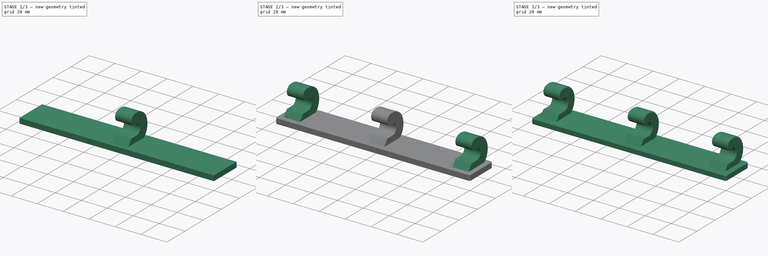
[diagram: build sequence overview — one tinted view per stage of 3, left to right]
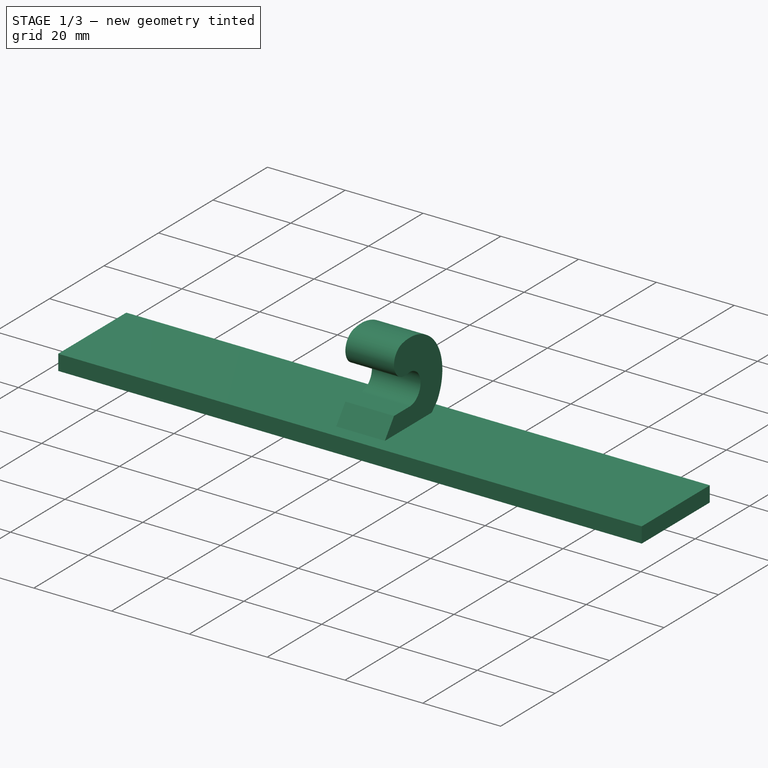
[diagram: stage 1 of 3 — iso view after this stage's code; geometry added in this stage tinted green]
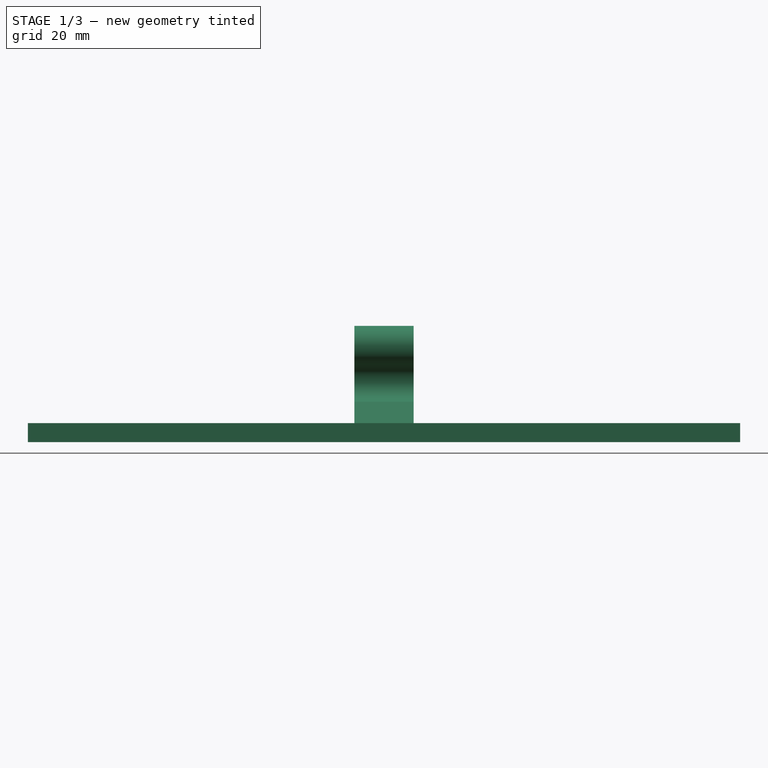
[diagram: stage 1 of 3 — front view after this stage's code; geometry added in this stage tinted green]
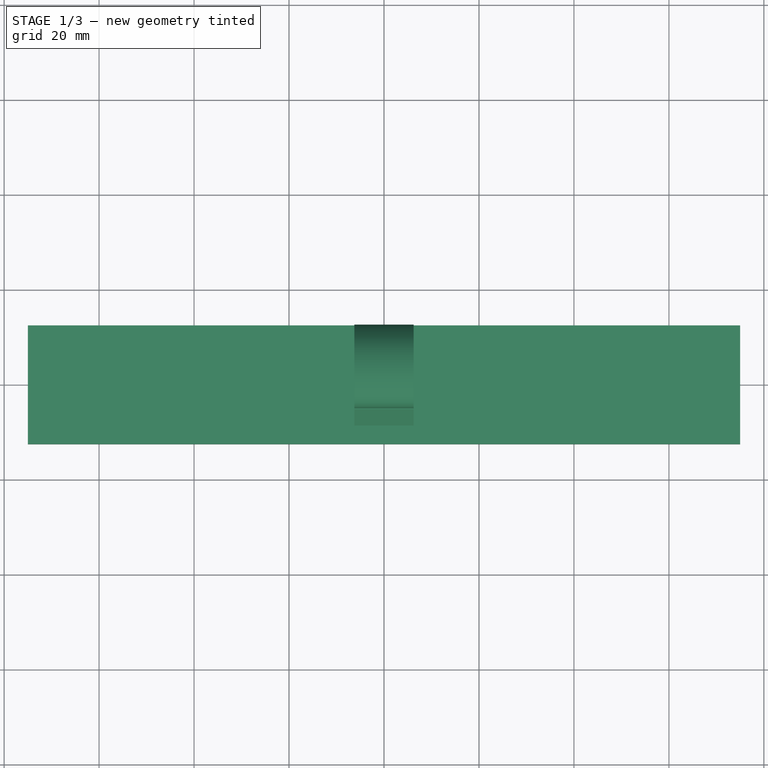
[diagram: stage 1 of 3 — top view after this stage's code; geometry added in this stage tinted green]
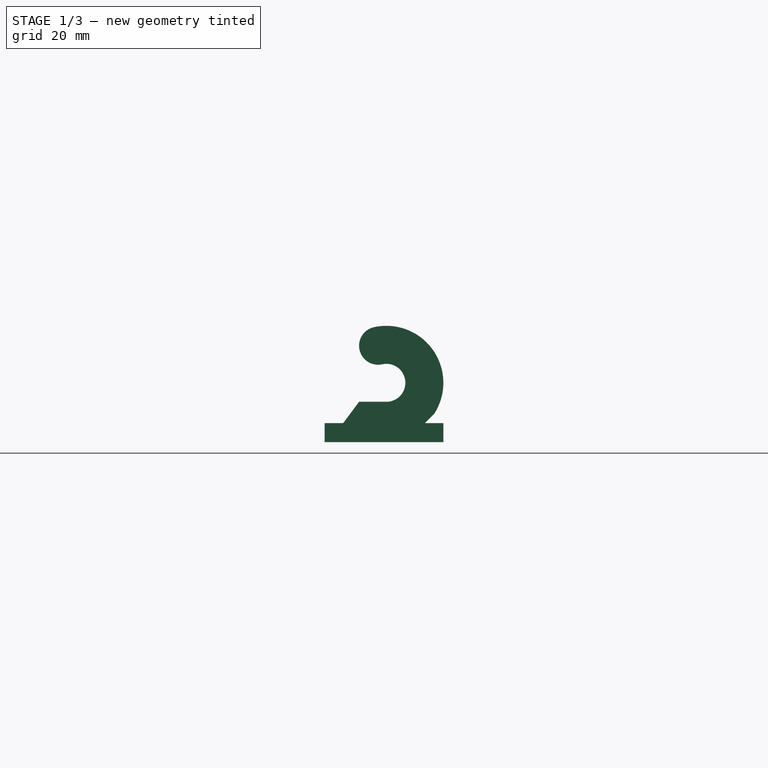
[diagram: stage 1 of 3 — right view after this stage's code; geometry added in this stage tinted green]
FCSTD DOCUMENT  (FreeCAD 0.19R22846 (Git))
Label: waschlappen_haken
License: All rights reserved
LicenseURL: http://en.wikipedia.org/wiki/All_rights_reserved
objects: Sketcher::SketchObject×2, PartDesign::Pad×2, PartDesign::LinearPattern×2, PartDesign::Fillet×2, PartDesign::Chamfer×1, PartDesign::Body×1
note: 15 computed .brp shape members not serialized (recipe doc carries the construction recipe); baked Part::Feature solids carry a one-line shape summary decoded from their .brp

FEATURE [Sketcher::SketchObject] Sketch  label="sk_basis"
  MapMode = 5
  Support = -> [XY_Plane]
  sketch-geometry (4):
    g0: LineSegment StartX=-75 StartY=12.5 StartZ=0 EndX=75 EndY=12.5 EndZ=0
    g1: LineSegment StartX=75 StartY=12.5 StartZ=0 EndX=75 EndY=-12.5 EndZ=0
    g2: LineSegment StartX=75 StartY=-12.5 StartZ=0 EndX=-75 EndY=-12.5 EndZ=0
    g3: LineSegment StartX=-75 StartY=-12.5 StartZ=0 EndX=-75 EndY=12.5 EndZ=0
  constraints (11):
    c: Coincident(g0,g1)
    c: Coincident(g1,g2)
    c: Coincident(g2,g3)
    c: Coincident(g3,g0)
    c: Horizontal(g0)
    c: Horizontal(g2)
    c: Vertical(g1)
    c: Vertical(g3)
    c: DistanceY(g3,g3) = 25
    c: DistanceX(g0,g0) = 150
    c: Symmetric(g0,g1,g-1)
FEATURE [PartDesign::Pad] Pad  label="p_basis"
  Direction = (1,1,1)
  Length = 4
  Length2 = 100
  Profile = -> Sketch
  Refine = true
  Type = 0
FEATURE [Sketcher::SketchObject] Sketch002  label="sk_haken"
  ExternalGeometry = -> [Pad]
  MapMode = 5
  Placement = pos=(0,0,0) rot=(0.57735,0.57735,0.57735;2.0944rad)
  Support = -> [YZ_Plane]
  sketch-geometry (13):
    g0: ArcOfCircle CenterX=0.5 CenterY=12.5 CenterZ=0 NormalX=0 NormalY=0 NormalZ=1 AngleXU=0 Radius=12 StartAngle=5.70552 EndAngle=8.07451
    g1: ArcOfCircle CenterX=-1.25 CenterY=20.3062 CenterZ=0 NormalX=0 NormalY=0 NormalZ=1 AngleXU=0 Radius=4 StartAngle=1.79133 EndAngle=4.93292
    g2: ArcOfCircle CenterX=0.5 CenterY=12.5 CenterZ=0 NormalX=0 NormalY=0 NormalZ=1 AngleXU=0 Radius=4 StartAngle=4.71239 EndAngle=8.07451
    g3: LineSegment StartX=0.5 StartY=8.5 StartZ=0 EndX=-5.25 EndY=8.5 EndZ=0
    g4: LineSegment StartX=-5.25 StartY=8.5 StartZ=0 EndX=-8.60572 EndY=4 EndZ=0
    g5: LineSegment [constr] StartX=12.5 StartY=4 StartZ=0 EndX=12.5 EndY=12.5 EndZ=0
    g6: LineSegment [constr] StartX=-5.25 StartY=4 StartZ=0 EndX=-5.25 EndY=20.3062 EndZ=0
    g7: LineSegment StartX=10.5529 StartY=5.94714 StartZ=0 EndX=8.60572 EndY=4 EndZ=0
    g8: LineSegment [constr] StartX=12.5 StartY=4 StartZ=0 EndX=10.5529 EndY=5.94714 EndZ=0
    g9: LineSegment [constr] StartX=12.5 StartY=12.5 StartZ=0 EndX=4.5 EndY=12.5 EndZ=0
    g10: LineSegment [constr] StartX=-8.60572 StartY=4 StartZ=0 EndX=-12.5 EndY=4 EndZ=0
    g11: LineSegment [constr] StartX=8.60572 StartY=4 StartZ=0 EndX=12.5 EndY=4 EndZ=0
    g12: LineSegment StartX=8.60572 StartY=4 StartZ=0 EndX=-8.60572 EndY=4 EndZ=0
  constraints (37):
    c: Tangent(g0,g1) = -1.5708
    c: Tangent(g1,g2) = 1.5708
    c: Coincident(g2,g3)
    c: Coincident(g3,g4)
    c: Coincident(g0,g2)
    c: DistanceY(g4,g3) = 4.5
    c: Vertical(g2,g0)
    c: DistanceY(g2,g0) = 4
    c: DistanceX(g1,g0) = 1.75
    c: Coincident(g5,g-3)
    c: PointOnObject(g5,g0)
    c: Vertical(g5)
    c: Tangent(g5,g0)
    c: PointOnObject(g6,g1)
    c: Tangent(g6,g1)
    c: PointOnObject(g3,g6)
    c: Vertical(g6)
    c: Horizontal(g3)
    c: PointOnObject(g7,g-3)
    c: Angle(g7,g-3) = 2.35619
    c: Coincident(g0,g7)
    c: Coincident(g8,g5)
    c: Coincident(g8,g0)
    c: Equal(g8,g7)
    c: Coincident(g9,g5)
    c: PointOnObject(g9,g2)
    c: Horizontal(g9)
    c: DistanceX(g9,g9) = 8
    c: Horizontal(g6,g7)
    c: Coincident(g11,g7)
    c: Coincident(g11,g5)
    c: Equal(g11,g10)
    c: Coincident(g12,g7)
    c: Coincident(g12,g4)
    c: Horizontal(g12)
    c: Coincident(g4,g10)
    c: Coincident(g10,g-3)
FEATURE [PartDesign::Pad] Pad001  label="p_haken"
  BaseFeature = -> Pad
  Direction = (1,1,1)
  Length = 12.5
  Length2 = 100
  Midplane = true
  Profile = -> Sketch002
  Refine = true
  Type = 0
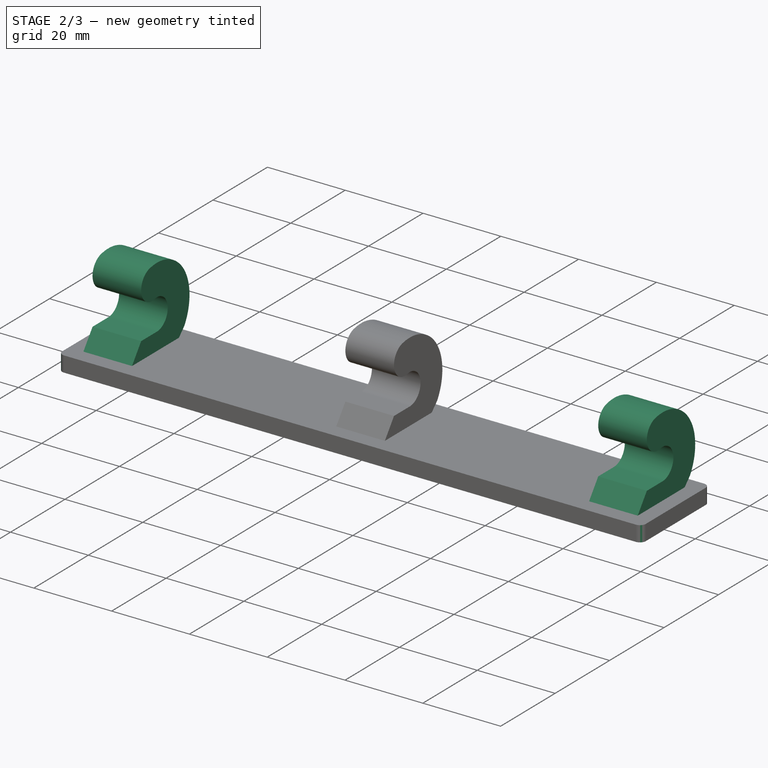
[diagram: stage 2 of 3 — iso view after this stage's code; geometry added in this stage tinted green]
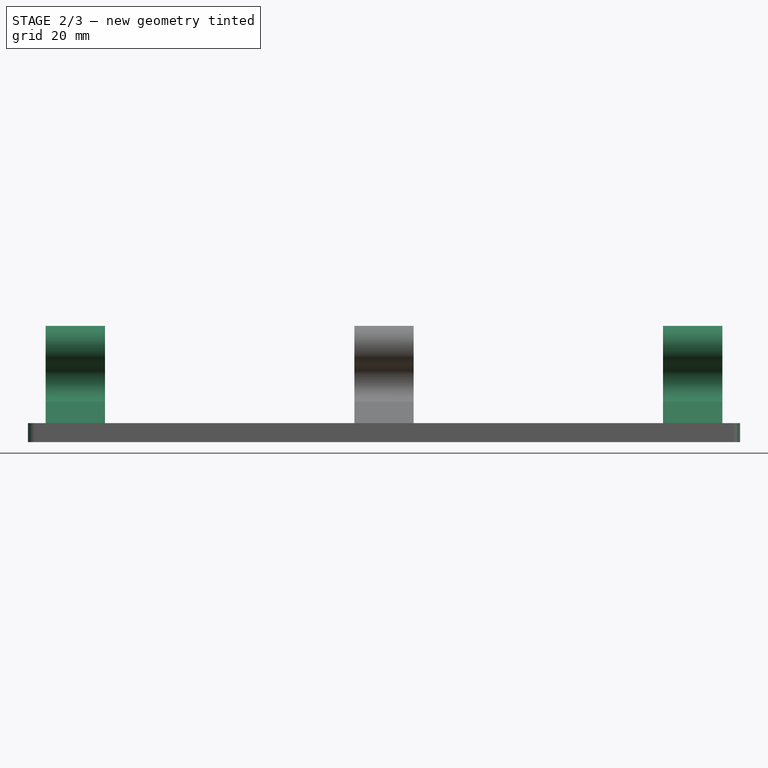
[diagram: stage 2 of 3 — front view after this stage's code; geometry added in this stage tinted green]
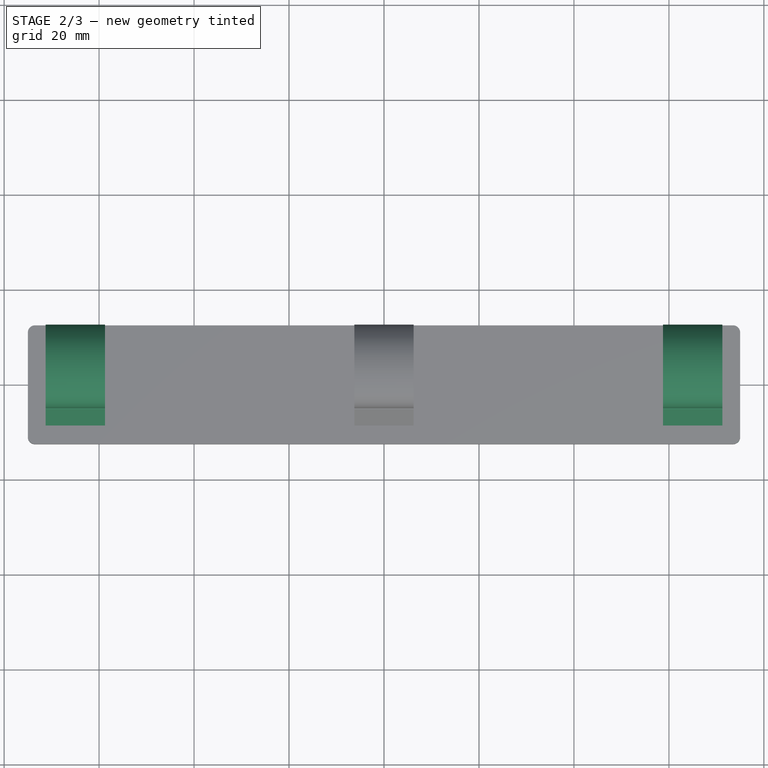
[diagram: stage 2 of 3 — top view after this stage's code; geometry added in this stage tinted green]
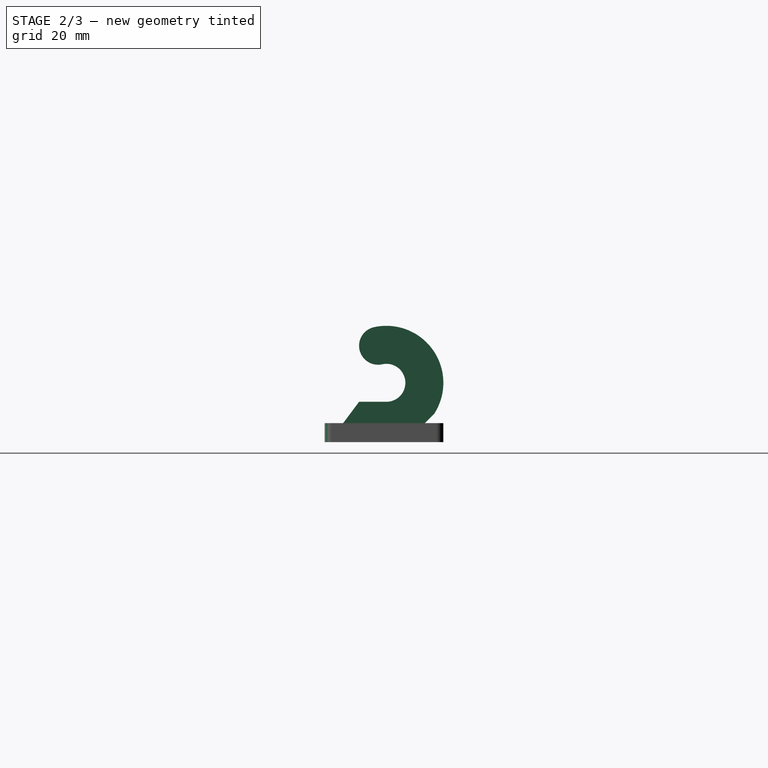
[diagram: stage 2 of 3 — right view after this stage's code; geometry added in this stage tinted green]
FEATURE [PartDesign::LinearPattern] LinearPattern  label="lp_haken_rechts"
  BaseFeature = -> Pad001
  Direction = -> X_Axis
  Length = 65
  Occurrences = 2
  Originals = -> [Pad001]
  Refine = true
  Reversed = true
FEATURE [PartDesign::LinearPattern] LinearPattern001  label="lp_haken_links"
  BaseFeature = -> LinearPattern
  Direction = -> X_Axis
  Length = 65
  Occurrences = 2
  Originals = -> [Pad001]
  Refine = true
FEATURE [PartDesign::Fillet] Fillet  label="f_ecken"
  Base = -> LinearPattern001 [Edge1,Edge5,Edge2,Edge8]
  BaseFeature = -> LinearPattern001
  Radius = 1.5
  Refine = true
  SupportTransform = false
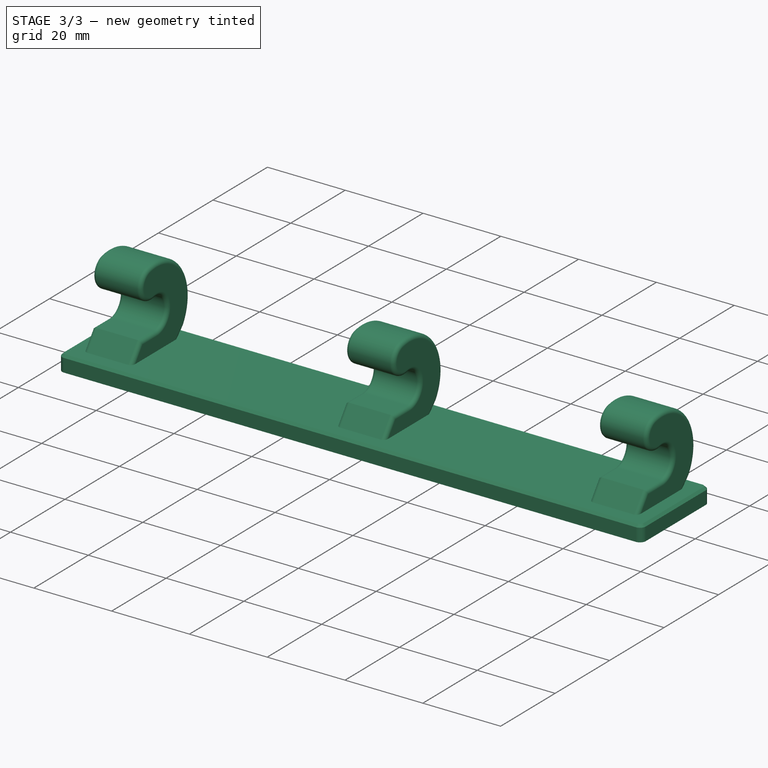
[diagram: stage 3 of 3 — iso view after this stage's code; geometry added in this stage tinted green]
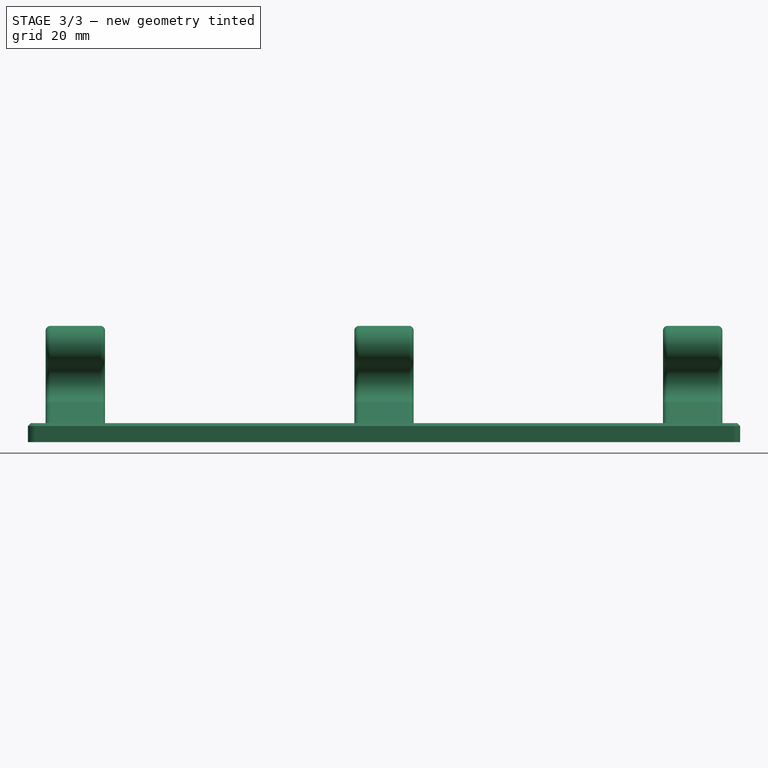
[diagram: stage 3 of 3 — front view after this stage's code; geometry added in this stage tinted green]
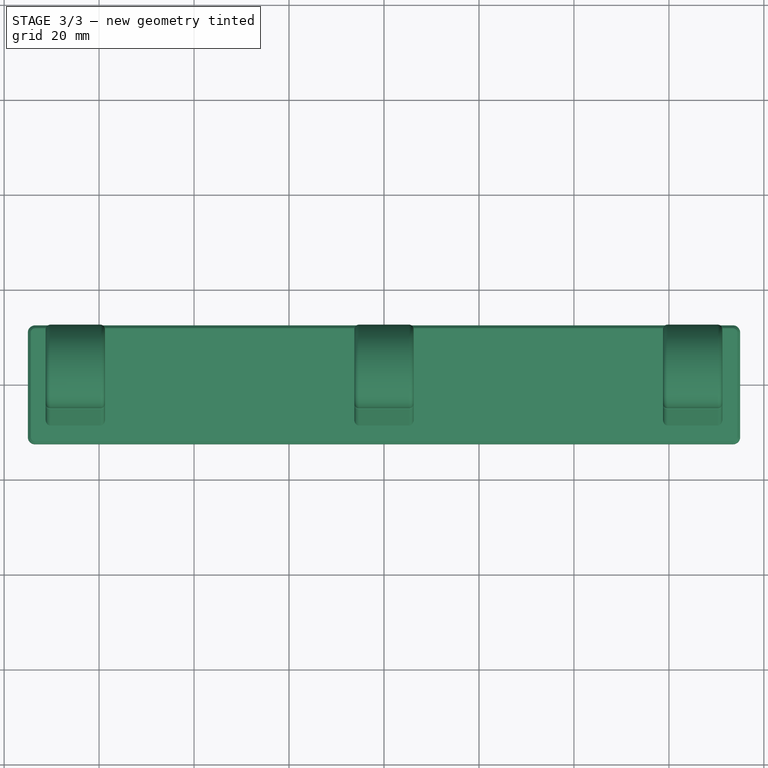
[diagram: stage 3 of 3 — top view after this stage's code; geometry added in this stage tinted green]
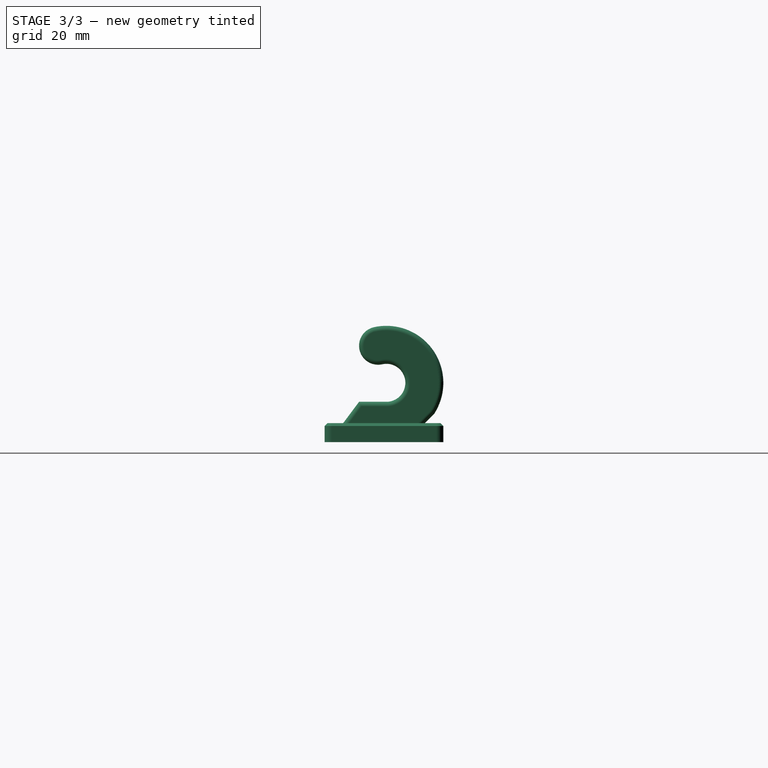
[diagram: stage 3 of 3 — right view after this stage's code; geometry added in this stage tinted green]
FEATURE [PartDesign::Fillet] Fillet001  label="f_haken"
  Base = -> Fillet [Edge45,Edge37,Edge38,Edge39,Edge47,Edge46,Edge49,Edge44,Edge48,Edge41,Edge40,Edge42,Edge60,Edge64,Edge63,Edge62,Edge61,Edge58,Edge55,Edge54,Edge53,Edge52,Edge51,Edge56,Edge74,Edge78,Edge72,Edge75,Edge77,Edge76,Edge65,Edge66,Edge67,Edge68,Edge69,Edge70]
  BaseFeature = -> Fillet
  Radius = 1
  Refine = true
  SupportTransform = false
FEATURE [PartDesign::Chamfer] Chamfer  label="c_basis"
  Angle = 45
  Base = -> Fillet001 [Edge16]
  BaseFeature = -> Fillet001
  ChamferType = 0
  FlipDirection = false
  Refine = true
  Size = 0.6
  Size2 = 1
  SupportTransform = false
FEATURE [PartDesign::Body] Body
  Group = -> [Sketch,Pad,Sketch002,Pad001,LinearPattern,LinearPattern001,Fillet,Fillet001,Chamfer]
  Origin = -> Origin
  Tip = -> Chamfer
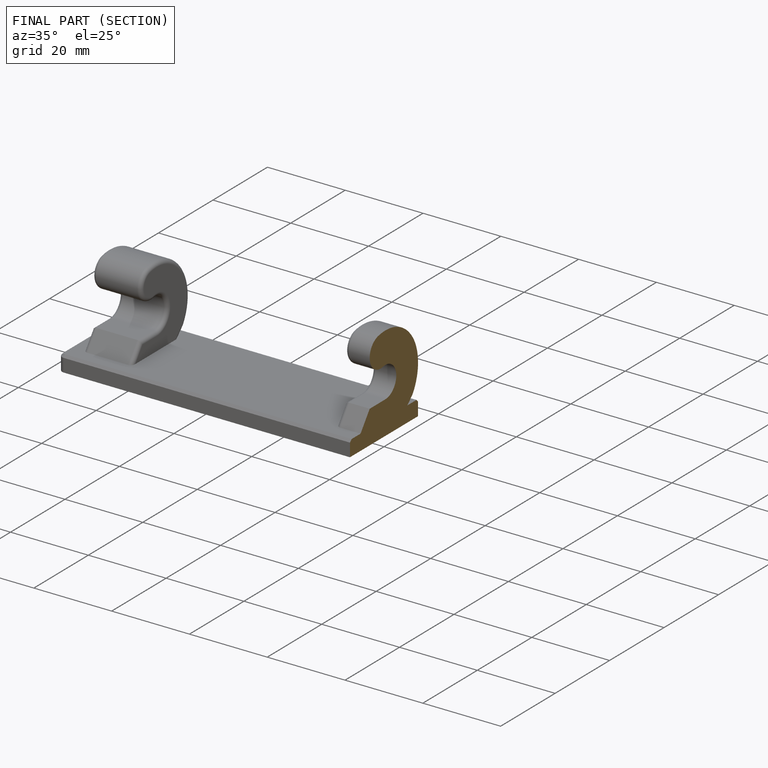
[diagram: finished part — half-section view (interior)]
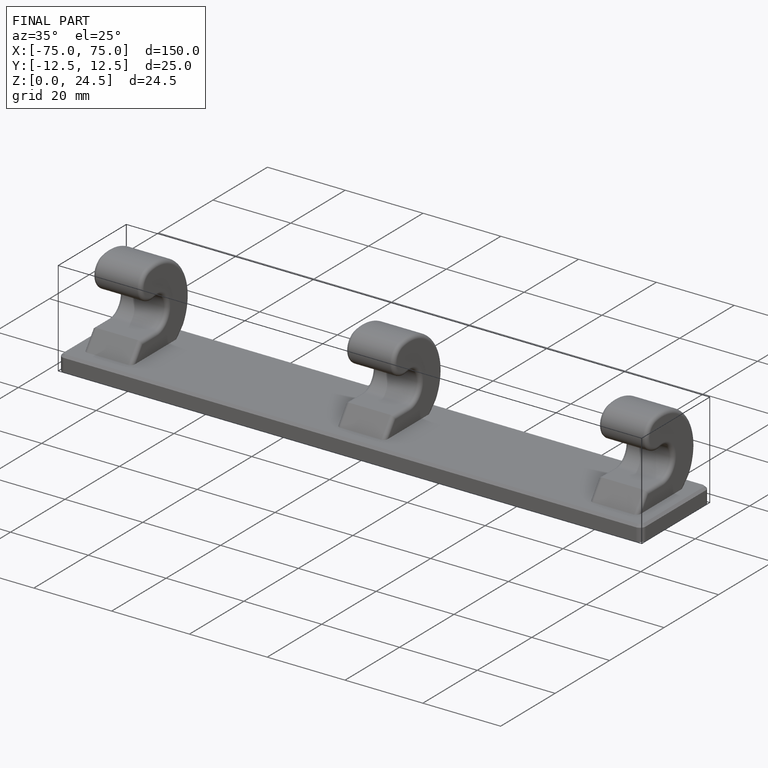
[diagram: finished part — iso view with bounding-box wireframe]
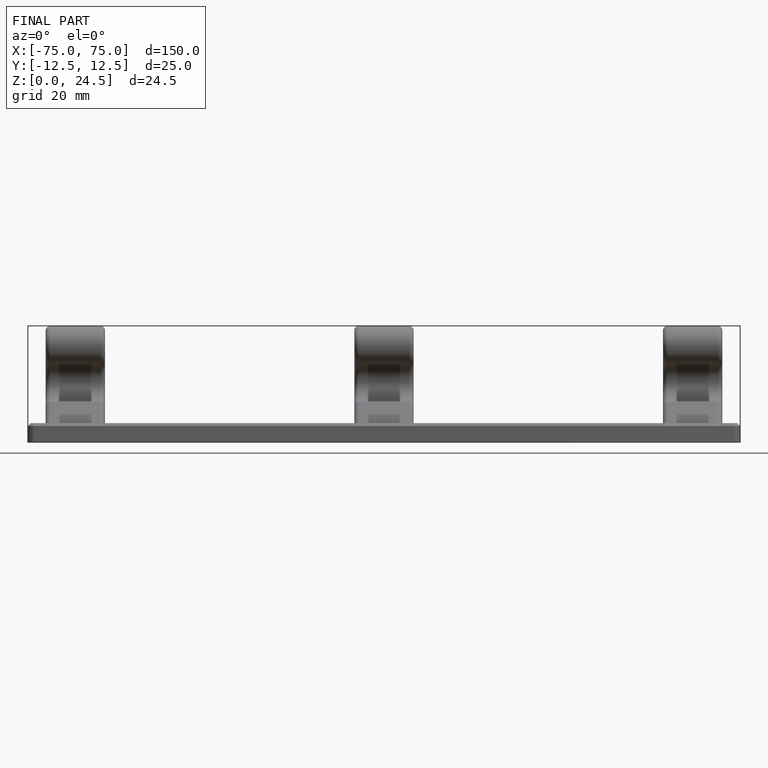
[diagram: finished part — front view with bounding-box wireframe]
